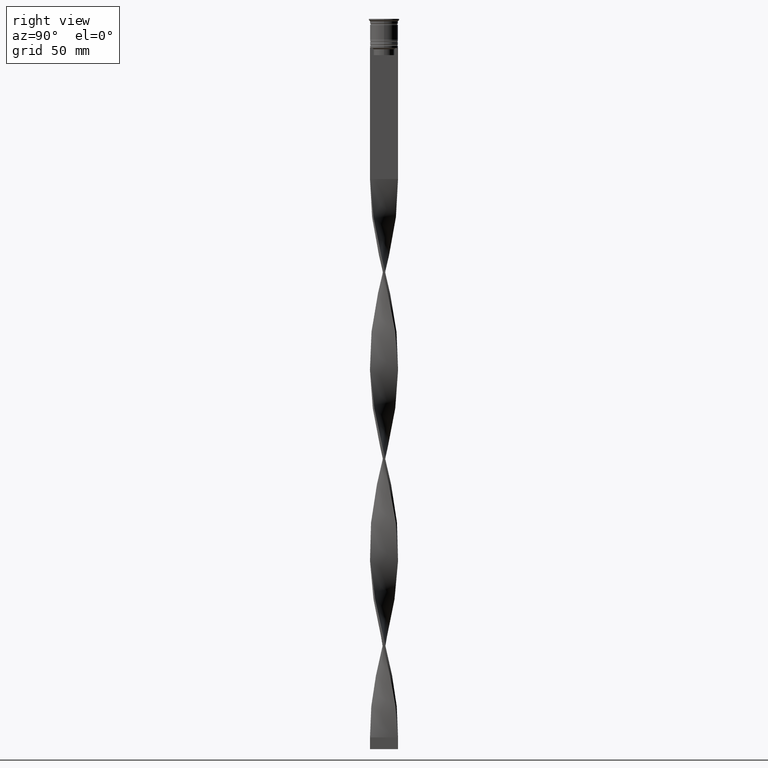
[diagram: clean part render]
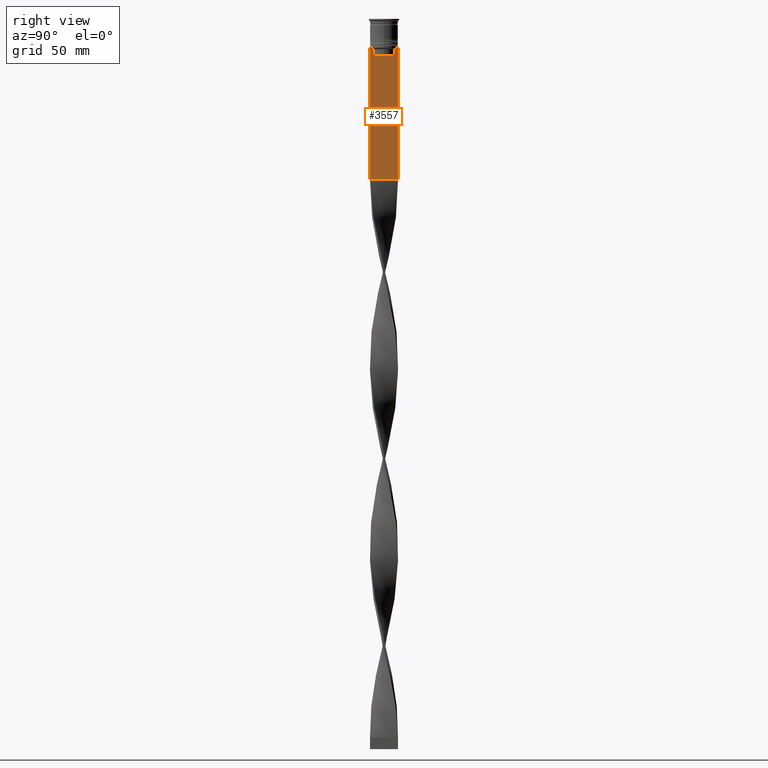
[diagram: same view with one face highlighted and labeled with its STEP entity id]
A machine part, right view. The second image highlights one B-rep face of the part: STEP entity #3557.
In plain terms, the highlighted planar face has unit normal (-1, 0, 0).
Its self-contained STEP definition (entity closure, byte-faithful):
#50 = DIRECTION ( 'NONE',  ( 0.000000000000000000, 0.000000000000000000, -1.000000000000000000 ) ) ;
#65 = LINE ( 'NONE', #1321, #3462 ) ;
#116 = CARTESIAN_POINT ( 'NONE',  ( 0.5000000000000002220, 4.371498598878878816, -13.00000000000000178 ) ) ;
#117 = CARTESIAN_POINT ( 'NONE',  ( 0.5000000000000002220, -4.874423042781576676, -12.50000000000000000 ) ) ;
#166 = LINE ( 'NONE', #2624, #4071 ) ;
#168 = VERTEX_POINT ( 'NONE', #1760 ) ;
#235 = CARTESIAN_POINT ( 'NONE',  ( 0.5000000000000002220, -4.874423042781576676, -12.50000000000000000 ) ) ;
#256 = CARTESIAN_POINT ( 'NONE',  ( 0.5000000000000002220, -4.371498598878878816, -13.00000000000000178 ) ) ;
#258 = CARTESIAN_POINT ( 'NONE',  ( 0.5000000000000002220, 6.000000000000000888, -12.50000000000000000 ) ) ;
#367 = LINE ( 'NONE', #1274, #1139 ) ;
#377 = ORIENTED_EDGE ( 'NONE', *, *, #3039, .T. ) ;
#417 = DIRECTION ( 'NONE',  ( 0.000000000000000000, 0.000000000000000000, -1.000000000000000000 ) ) ;
#422 = AXIS2_PLACEMENT_3D ( 'NONE', #1798, #3027, #1136 ) ;
#458 = EDGE_CURVE ( 'NONE', #3019, #3721, #3520, .T. ) ;
#469 = ORIENTED_EDGE ( 'NONE', *, *, #1453, .T. ) ;
#481 = CARTESIAN_POINT ( 'NONE',  ( 0.5000000000000002220, -5.999999999999999112, -68.50000000000000000 ) ) ;
#482 = LINE ( 'NONE', #2966, #3664 ) ;
#516 = VERTEX_POINT ( 'NONE', #481 ) ;
#570 = CARTESIAN_POINT ( 'NONE',  ( 0.5000000000000002220, -4.706831372970962768, -12.66671687695981774 ) ) ;
#592 = LINE ( 'NONE', #831, #879 ) ;
#625 = VERTEX_POINT ( 'NONE', #870 ) ;
#733 = EDGE_CURVE ( 'NONE', #1836, #2710, #2010, .T. ) ;
#758 = VERTEX_POINT ( 'NONE', #3766 ) ;
#764 = DIRECTION ( 'NONE',  ( 0.000000000000000000, -1.000000000000000000, 0.000000000000000000 ) ) ;
#770 = DIRECTION ( 'NONE',  ( 0.000000000000000000, -1.000000000000000000, 0.000000000000000000 ) ) ;
#781 = DIRECTION ( 'NONE',  ( 0.000000000000000000, 0.000000000000000000, -1.000000000000000000 ) ) ;
#811 = CARTESIAN_POINT ( 'NONE',  ( 0.5000000000000002220, -6.000000000000000000, -12.50000000000000000 ) ) ;
#831 = CARTESIAN_POINT ( 'NONE',  ( 0.5000000000000002220, -6.000000000000000000, -68.50000000000000000 ) ) ;
#862 = EDGE_LOOP ( 'NONE', ( #469, #1915, #2191, #1987, #2424, #1006, #1800, #1953, #1315, #377, #2837, #3695 ) ) ;
#866 = VECTOR ( 'NONE', #3917, 1000.000000000000000 ) ;
#870 = CARTESIAN_POINT ( 'NONE',  ( 0.5000000000000002220, 4.371498598878878816, -15.50000000000000000 ) ) ;
#879 = VECTOR ( 'NONE', #3054, 1000.000000000000000 ) ;
#881 = CARTESIAN_POINT ( 'NONE',  ( 0.5000000000000002220, -5.878775382679627626, -12.50000000000000000 ) ) ;
#892 = CARTESIAN_POINT ( 'NONE',  ( 0.5000000000000002220, 4.399999999999999467, -15.50000000000000000 ) ) ;
#909 = EDGE_CURVE ( 'NONE', #2710, #625, #65, .T. ) ;
#960 = CARTESIAN_POINT ( 'NONE',  ( 0.5000000000000002220, 4.706831415367288329, -12.66671683478479160 ) ) ;
#1006 = ORIENTED_EDGE ( 'NONE', *, *, #2282, .T. ) ;
#1043 = DIRECTION ( 'NONE',  ( 0.000000000000000000, -1.000000000000000000, 0.000000000000000000 ) ) ;
#1119 = LINE ( 'NONE', #2993, #1610 ) ;
#1136 = DIRECTION ( 'NONE',  ( 0.000000000000000000, 0.000000000000000000, 1.000000000000000000 ) ) ;
#1139 = VECTOR ( 'NONE', #1043, 1000.000000000000000 ) ;
#1222 = FACE_OUTER_BOUND ( 'NONE', #862, .T. ) ;
#1223 = CARTESIAN_POINT ( 'NONE',  ( 0.5000000000000002220, 4.539195634199896467, -12.83338923751318816 ) ) ;
#1274 = CARTESIAN_POINT ( 'NONE',  ( 0.5000000000000002220, -6.000000000000000000, -12.50000000000000000 ) ) ;
#1315 = ORIENTED_EDGE ( 'NONE', *, *, #3424, .T. ) ;
#1321 = CARTESIAN_POINT ( 'NONE',  ( 0.5000000000000002220, 4.371498598878878816, 0.000000000000000000 ) ) ;
#1453 = EDGE_CURVE ( 'NONE', #758, #1836, #2021, .T. ) ;
#1566 = VERTEX_POINT ( 'NONE', #881 ) ;
#1610 = VECTOR ( 'NONE', #3657, 1000.000000000000000 ) ;
#1732 = CARTESIAN_POINT ( 'NONE',  ( 0.5000000000000002220, 4.874423042781576676, -12.50000000000000000 ) ) ;
#1760 = CARTESIAN_POINT ( 'NONE',  ( 0.5000000000000002220, -4.371498598878878816, -15.50000000000000000 ) ) ;
#1798 = CARTESIAN_POINT ( 'NONE',  ( 0.5000000000000002220, -6.000000000000000000, -0.4584054212077061097 ) ) ;
#1800 = ORIENTED_EDGE ( 'NONE', *, *, #2835, .T. ) ;
#1836 = VERTEX_POINT ( 'NONE', #1732 ) ;
#1870 = VECTOR ( 'NONE', #770, 1000.000000000000000 ) ;
#1915 = ORIENTED_EDGE ( 'NONE', *, *, #733, .T. ) ;
#1924 = VECTOR ( 'NONE', #50, 1000.000000000000000 ) ;
#1953 = ORIENTED_EDGE ( 'NONE', *, *, #3319, .T. ) ;
#1987 = ORIENTED_EDGE ( 'NONE', *, *, #3603, .T. ) ;
#2010 = B_SPLINE_CURVE_WITH_KNOTS ( 'NONE', 3,
 ( #2536, #960, #1223, #2227 ),
 .UNSPECIFIED., .F., .F.,
 ( 4, 4 ),
 ( 0.008336552452178421987, 0.009045730124312839626 ),
 .UNSPECIFIED. ) ;
#2021 = LINE ( 'NONE', #2644, #866 ) ;
#2044 = VERTEX_POINT ( 'NONE', #117 ) ;
#2093 = LINE ( 'NONE', #892, #3812 ) ;
#2191 = ORIENTED_EDGE ( 'NONE', *, *, #909, .T. ) ;
#2227 = CARTESIAN_POINT ( 'NONE',  ( 0.5000000000000002220, 4.371498598878878816, -13.00000000000000178 ) ) ;
#2282 = EDGE_CURVE ( 'NONE', #3094, #2044, #3185, .T. ) ;
#2390 = LINE ( 'NONE', #811, #1870 ) ;
#2424 = ORIENTED_EDGE ( 'NONE', *, *, #3839, .T. ) ;
#2430 = CARTESIAN_POINT ( 'NONE',  ( 0.5000000000000002220, -4.371498598878878816, -13.00000000000000178 ) ) ;
#2536 = CARTESIAN_POINT ( 'NONE',  ( 0.5000000000000002220, 4.874423042781576676, -12.50000000000000000 ) ) ;
#2542 = CARTESIAN_POINT ( 'NONE',  ( 0.5000000000000002220, 6.000000000000000888, -0.4584054212077061097 ) ) ;
#2585 = EDGE_CURVE ( 'NONE', #3019, #758, #367, .T. ) ;
#2624 = CARTESIAN_POINT ( 'NONE',  ( 0.5000000000000002220, -6.000000000000000000, -12.50000000000000000 ) ) ;
#2644 = CARTESIAN_POINT ( 'NONE',  ( 0.5000000000000002220, -6.000000000000000000, -12.50000000000000000 ) ) ;
#2710 = VERTEX_POINT ( 'NONE', #116 ) ;
#2732 = PLANE ( 'NONE',  #422 ) ;
#2816 = VERTEX_POINT ( 'NONE', #3942 ) ;
#2835 = EDGE_CURVE ( 'NONE', #2044, #1566, #2390, .T. ) ;
#2837 = ORIENTED_EDGE ( 'NONE', *, *, #458, .F. ) ;
#2966 = CARTESIAN_POINT ( 'NONE',  ( 0.5000000000000002220, -6.000000000000000000, -0.4584054212077061097 ) ) ;
#2993 = CARTESIAN_POINT ( 'NONE',  ( 0.5000000000000002220, -4.371498598878878816, 0.000000000000000000 ) ) ;
#3019 = VERTEX_POINT ( 'NONE', #258 ) ;
#3027 = DIRECTION ( 'NONE',  ( -1.000000000000000000, 0.000000000000000000, 0.000000000000000000 ) ) ;
#3039 = EDGE_CURVE ( 'NONE', #516, #3721, #592, .T. ) ;
#3054 = DIRECTION ( 'NONE',  ( 0.000000000000000000, 1.000000000000000000, 0.000000000000000000 ) ) ;
#3075 = CARTESIAN_POINT ( 'NONE',  ( 0.5000000000000002220, -4.539195586926423331, -12.83338928448044314 ) ) ;
#3094 = VERTEX_POINT ( 'NONE', #2430 ) ;
#3185 = B_SPLINE_CURVE_WITH_KNOTS ( 'NONE', 3,
 ( #256, #3075, #570, #235 ),
 .UNSPECIFIED., .F., .F.,
 ( 4, 4 ),
 ( 0.02089901220910808308, 0.02161421017310286019 ),
 .UNSPECIFIED. ) ;
#3319 = EDGE_CURVE ( 'NONE', #1566, #2816, #166, .T. ) ;
#3362 = DIRECTION ( 'NONE',  ( 0.000000000000000000, -1.000000000000000000, 0.000000000000000000 ) ) ;
#3424 = EDGE_CURVE ( 'NONE', #2816, #516, #482, .T. ) ;
#3462 = VECTOR ( 'NONE', #417, 1000.000000000000000 ) ;
#3520 = LINE ( 'NONE', #2542, #1924 ) ;
#3557 = ADVANCED_FACE ( 'NONE', ( #1222 ), #2732, .F. ) ;
#3603 = EDGE_CURVE ( 'NONE', #625, #168, #2093, .T. ) ;
#3657 = DIRECTION ( 'NONE',  ( -0.000000000000000000, -0.000000000000000000, 1.000000000000000000 ) ) ;
#3664 = VECTOR ( 'NONE', #781, 1000.000000000000000 ) ;
#3695 = ORIENTED_EDGE ( 'NONE', *, *, #2585, .T. ) ;
#3721 = VERTEX_POINT ( 'NONE', #4095 ) ;
#3766 = CARTESIAN_POINT ( 'NONE',  ( 0.5000000000000002220, 5.878775382679627626, -12.50000000000000000 ) ) ;
#3812 = VECTOR ( 'NONE', #3362, 1000.000000000000000 ) ;
#3839 = EDGE_CURVE ( 'NONE', #168, #3094, #1119, .T. ) ;
#3917 = DIRECTION ( 'NONE',  ( 0.000000000000000000, -1.000000000000000000, 0.000000000000000000 ) ) ;
#3942 = CARTESIAN_POINT ( 'NONE',  ( 0.5000000000000002220, -6.000000000000000000, -12.50000000000000000 ) ) ;
#4071 = VECTOR ( 'NONE', #764, 1000.000000000000000 ) ;
#4095 = CARTESIAN_POINT ( 'NONE',  ( 0.5000000000000002220, 6.000000000000000888, -68.50000000000000000 ) ) ;